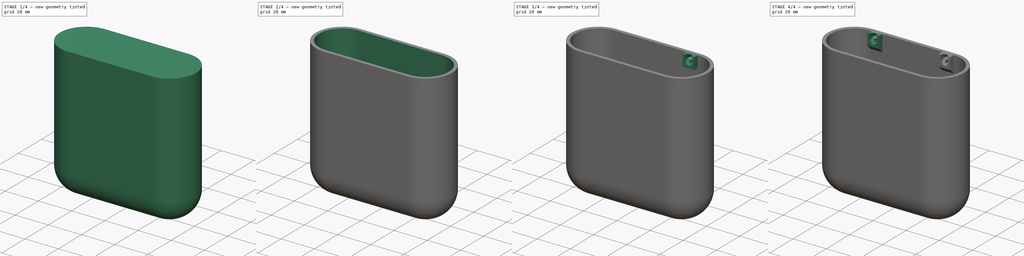
[diagram: build sequence overview — one tinted view per stage of 4, left to right]
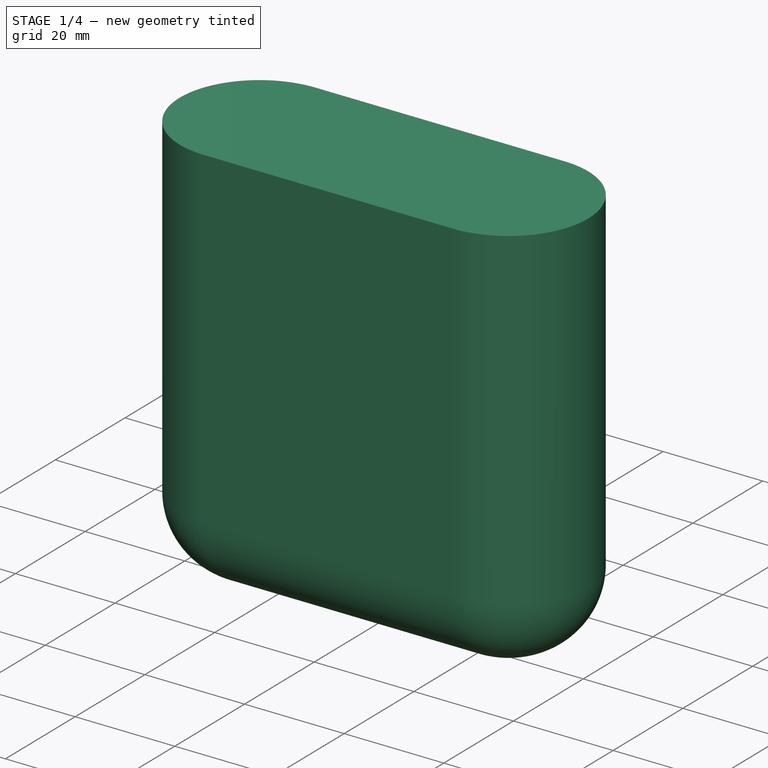
[diagram: stage 1 of 4 — iso view after this stage's code; geometry added in this stage tinted green]
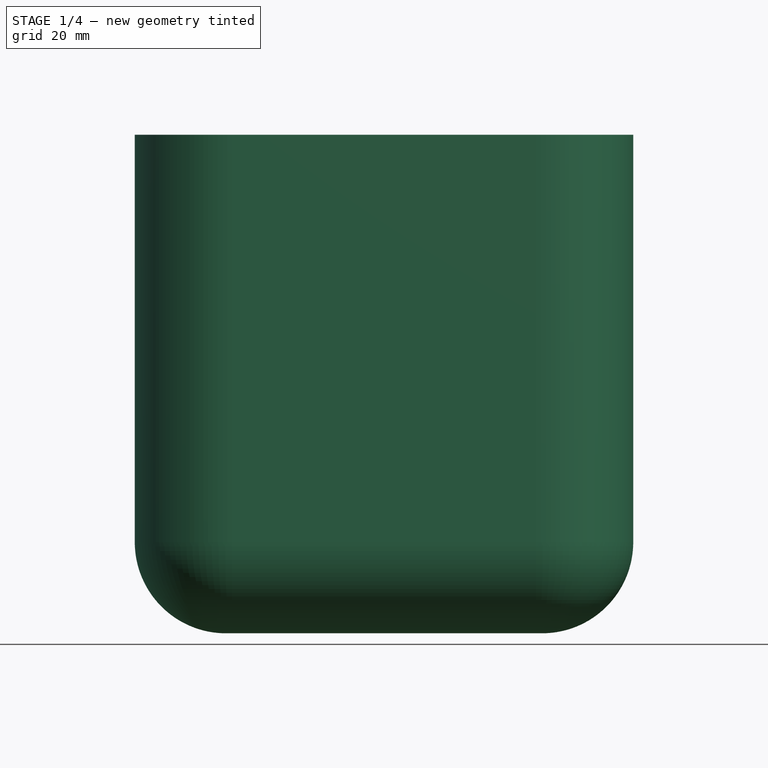
[diagram: stage 1 of 4 — front view after this stage's code; geometry added in this stage tinted green]
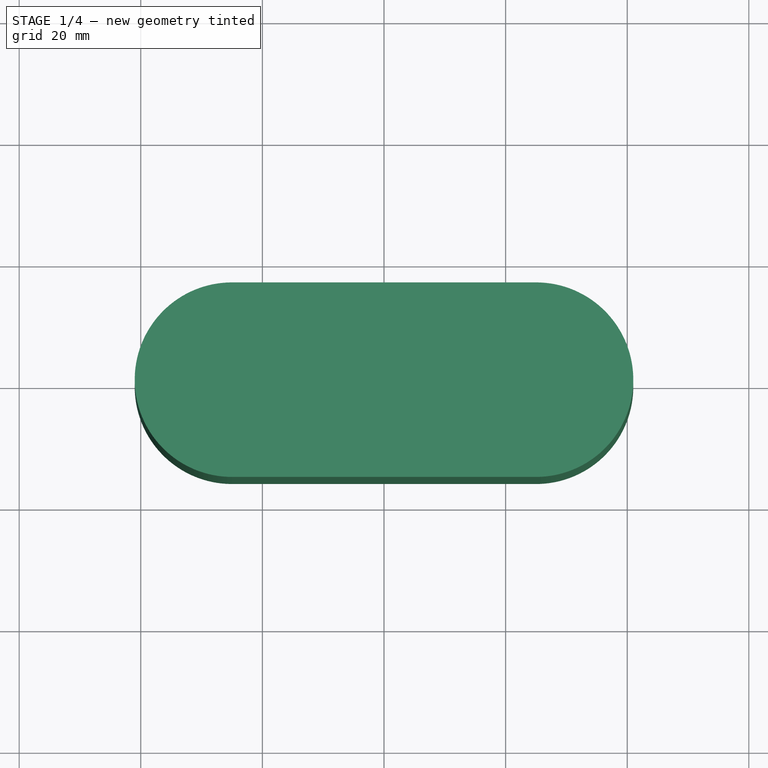
[diagram: stage 1 of 4 — top view after this stage's code; geometry added in this stage tinted green]
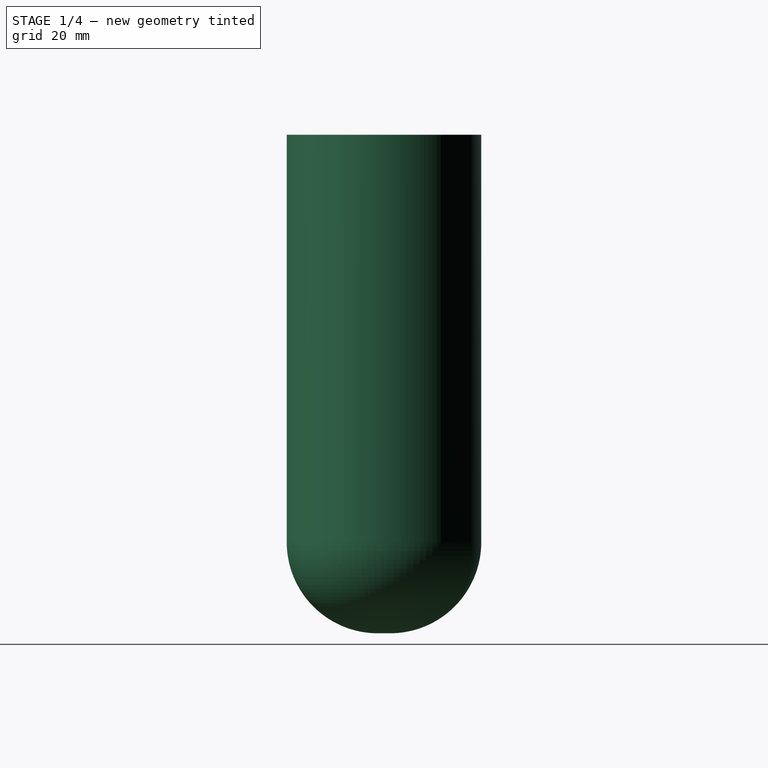
[diagram: stage 1 of 4 — right view after this stage's code; geometry added in this stage tinted green]
FCSTD DOCUMENT  (FreeCAD 0.20R29177 +426 (Git))
Label: bathroom_wall_holder
License: All rights reserved
LicenseURL: http://en.wikipedia.org/wiki/All_rights_reserved
objects: Sketcher::SketchObject×5, PartDesign::Pocket×3, PartDesign::Pad×2, PartDesign::LinearPattern×2, Spreadsheet::Sheet×1, PartDesign::Fillet×1, PartDesign::Thickness×1, PartDesign::Chamfer×1, PartDesign::Body×1
note: 24 computed .brp shape members not serialized (recipe doc carries the construction recipe); baked Part::Feature solids carry a one-line shape summary decoded from their .brp

FEATURE [Spreadsheet::Sheet] Spreadsheet  label="$params"
  cells = A1=name; B1=value; C1=name; D1=value; A2=padding; B2(padding)=2; A3=width; B3(width)=82; A4=depth; B4(depth)=32; A5=height; B5(height)=82; A6=drain_width; B6(drain_width)=2; A7=drain_count; B7(drain_count)=6; A8=drain_span; B8(drain_span)=0.6; A9=drain_span_horizontal; B9(drain_span_horizontal)=0.5; A10=nail_pad_size; B10(nail_pad_size)=7; A11=nail_head_diam; B11(nail_head_diam)=5; A12=nail_diam; B12(nail_diam)=2; A13=nail_pad_height; B13(nail_pad_height)=3; A14=nail_head_inset; B14(nail_head_inset)=0.6; A15=nail_count; B15(nail_count)=2
FEATURE [Sketcher::SketchObject] Sketch001  label="Base Body Pad Sketch"
  FullyConstrained = true
  MapMode = 5
  Support = -> [XY_Plane001]
  expr: Constraints[13] = <<$params>>.width
  expr: Constraints[14] = <<$params>>.depth
  sketch-geometry (6):
    g0: ArcOfCircle CenterX=-25 CenterY=-1.18477e-11 CenterZ=0 NormalX=0 NormalY=0 NormalZ=1 AngleXU=0 Radius=16 StartAngle=1.5708 EndAngle=4.71239
    g1: ArcOfCircle CenterX=25 CenterY=-1.18899e-11 CenterZ=0 NormalX=0 NormalY=0 NormalZ=1 AngleXU=0 Radius=16 StartAngle=4.71239 EndAngle=7.85398
    g2: LineSegment StartX=-25 StartY=-16 StartZ=0 EndX=25 EndY=-16 EndZ=0
    g3: LineSegment StartX=25 StartY=16 StartZ=0 EndX=-25 EndY=16 EndZ=0
    g4: LineSegment StartX=-25 StartY=-1.18477e-11 StartZ=0 EndX=-41 EndY=-1.18477e-11 EndZ=0
    g5: LineSegment StartX=25 StartY=-1.18899e-11 StartZ=0 EndX=41 EndY=-1.18899e-11 EndZ=0
  constraints (15):
    c: Tangent(g0,g2) = -1.5708
    c: Tangent(g2,g1) = -1.5708
    c: Tangent(g1,g3) = -1.5708
    c: Tangent(g3,g0) = -1.5708
    c: Equal(g0,g1)
    c: Horizontal(g2)
    c: Symmetric(g0,g1,g-1)
    c: Coincident(g4,g0)
    c: PointOnObject(g4,g0)
    c: Horizontal(g4)
    c: Coincident(g5,g1)
    c: PointOnObject(g5,g1)
    c: Horizontal(g5)
    c: DistanceX(g4,g5) = 82
    c: DistanceY(g0,g0) = 32
FEATURE [PartDesign::Pad] Pad001  label="Base Body Pad"
  Direction = (0,0,1)
  Length = 82
  Length2 = 10
  Profile = -> Sketch001
  ReferenceAxis = -> Sketch001 [N_Axis]
  Refine = true
  Type = 0
  expr: Length = <<$params>>.height
FEATURE [PartDesign::Fillet] Fillet  label="Base Body Bottom Round"
  Base = -> Pad001 [Face5]
  BaseFeature = -> Pad001
  Radius = 15
  SupportTransform = false
  UseAllEdges = false
  expr: Radius = (<<$params>>.depth - <<$params>>.padding) * 0.5
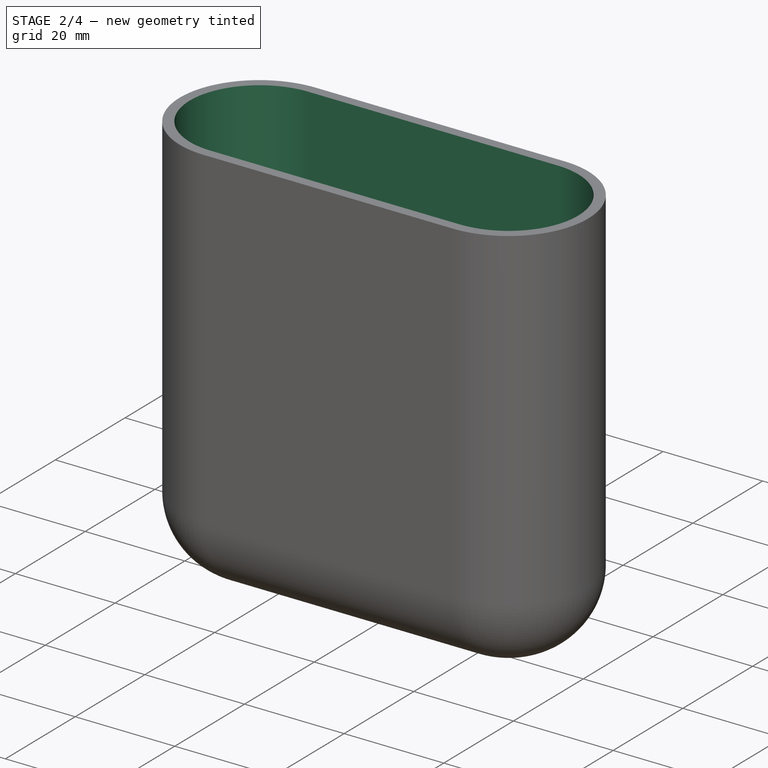
[diagram: stage 2 of 4 — iso view after this stage's code; geometry added in this stage tinted green]
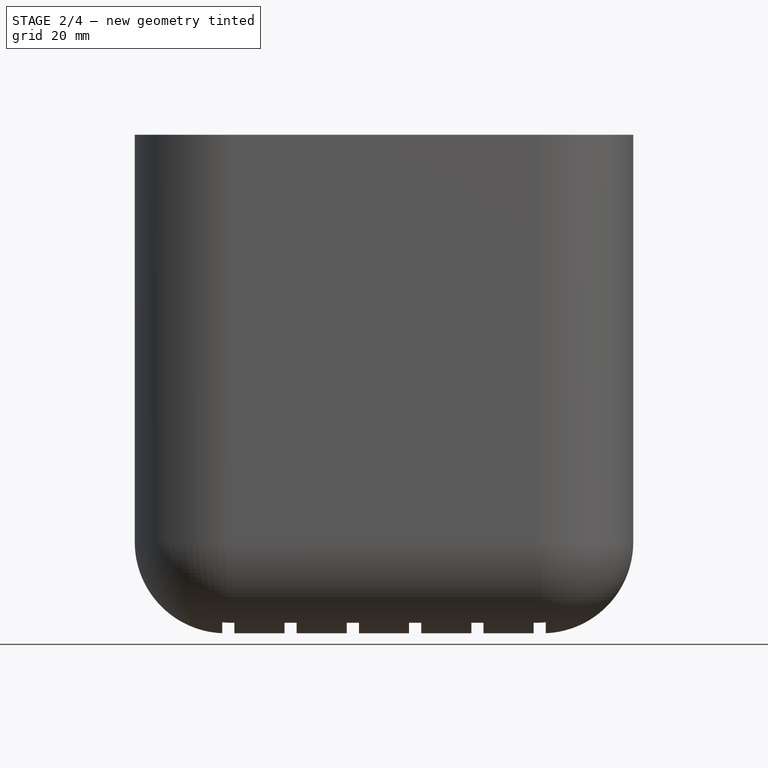
[diagram: stage 2 of 4 — front view after this stage's code; geometry added in this stage tinted green]
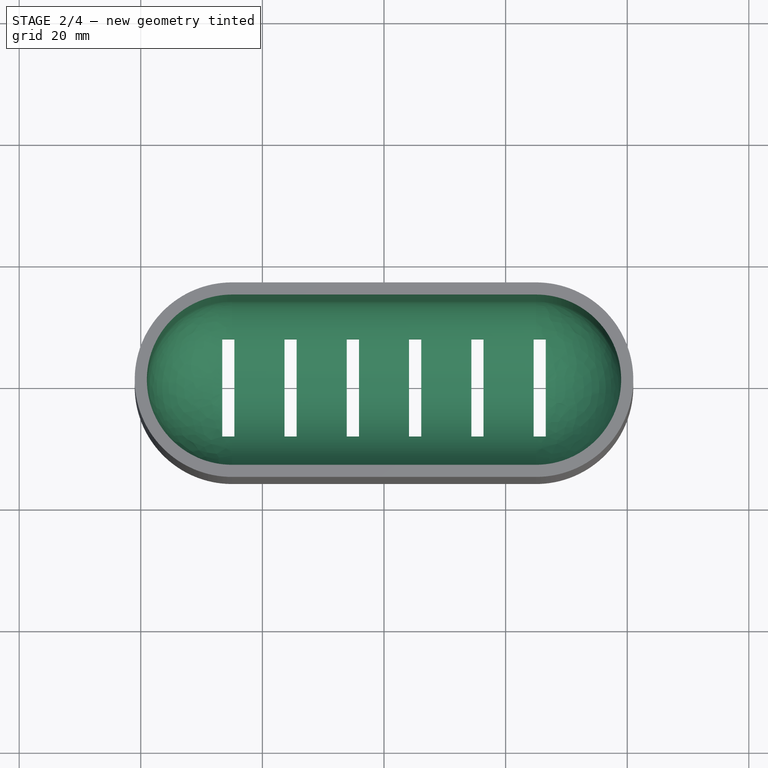
[diagram: stage 2 of 4 — top view after this stage's code; geometry added in this stage tinted green]
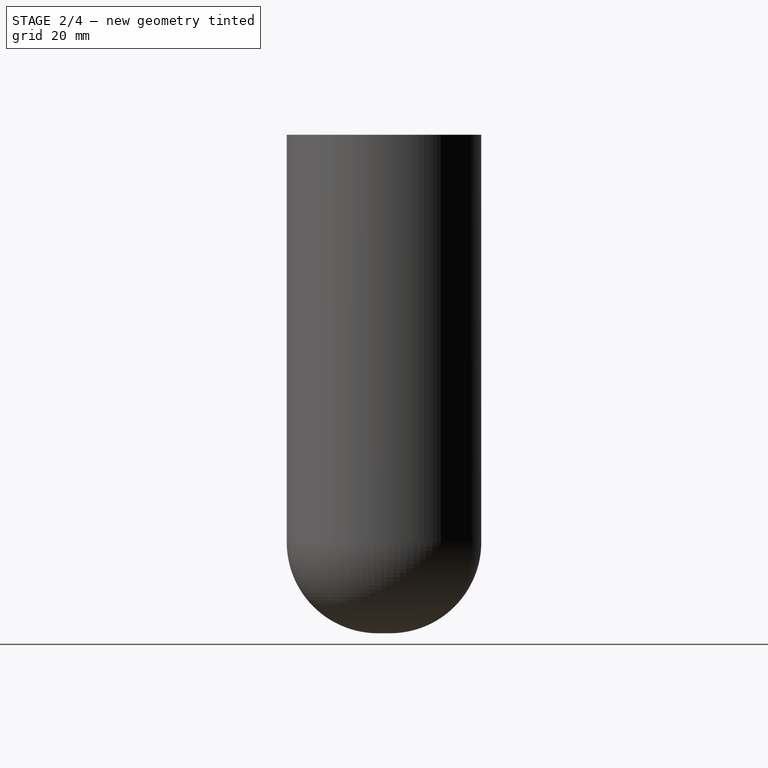
[diagram: stage 2 of 4 — right view after this stage's code; geometry added in this stage tinted green]
FEATURE [PartDesign::Thickness] Thickness001  label="Base Body Hollow"
  Base = -> Fillet [Face4]
  BaseFeature = -> Fillet
  Intersection = false
  Join = 0
  Mode = 0
  Refine = true
  Reversed = true
  SupportTransform = false
  Value = 2
  expr: Value = <<$params>>.padding
FEATURE [Sketcher::SketchObject] Sketch  label="Drain Hole Cut Sketch"
  FullyConstrained = true
  MapMode = 5
  Placement = pos=(0,0,0) rot=(1,0,0;3.14159rad)
  Support = -> [Thickness001]
  expr: Constraints[12] = <<$params>>.width * <<$params>>.drain_span / 2
  expr: Constraints[15] = <<$params>>.depth * <<$params>>.drain_span_horizontal
  sketch-geometry (6):
    g0: LineSegment StartX=24.6 StartY=8 StartZ=0 EndX=26.6 EndY=8 EndZ=0
    g1: LineSegment StartX=26.6 StartY=8 StartZ=0 EndX=26.6 EndY=-8 EndZ=0
    g2: LineSegment StartX=26.6 StartY=-8 StartZ=0 EndX=24.6 EndY=-8 EndZ=0
    g3: LineSegment StartX=24.6 StartY=-8 StartZ=0 EndX=24.6 EndY=8 EndZ=0
    g4: LineSegment StartX=0 StartY=0 StartZ=0 EndX=0 EndY=8 EndZ=0
    g5: LineSegment StartX=0 StartY=8 StartZ=0 EndX=24.6 EndY=8 EndZ=0
  constraints (16):
    c: Coincident(g0,g1)
    c: Coincident(g1,g2)
    c: Coincident(g2,g3)
    c: Coincident(g3,g0)
    c: Horizontal(g0)
    c: Horizontal(g2)
    c: Vertical(g3)
    c: Coincident(g4,g-1)
    c: PointOnObject(g4,g-2)
    c: Coincident(g5,g4)
    c: Coincident(g5,g0)
    c: Horizontal(g5)
    c: DistanceX(g5,g5) = 24.6
    c: DistanceX(g0,g0) = 2
    c: Symmetric(g0,g1,g-1)
    c: DistanceY(g1,g1) = 16
FEATURE [PartDesign::Pocket] Pocket  label="Drain Hole Cut"
  BaseFeature = -> Thickness001
  Direction = (0,0,1)
  Length = 16
  Length2 = 5
  Profile = -> Sketch
  ReferenceAxis = -> Sketch [N_Axis]
  Type = 0
  expr: Length = <<$params>>.depth / 2
FEATURE [PartDesign::LinearPattern] LinearPattern  label="Drain Hole Repeater"
  BaseFeature = -> Pocket
  Direction = -> Sketch [H_Axis]
  Length = 51.2
  Occurrences = 6
  Originals = -> [Pocket]
  Reversed = true
  expr: Length = <<$params>>.width * <<$params>>.drain_span + 2
  expr: Occurrences = <<$params>>.drain_count
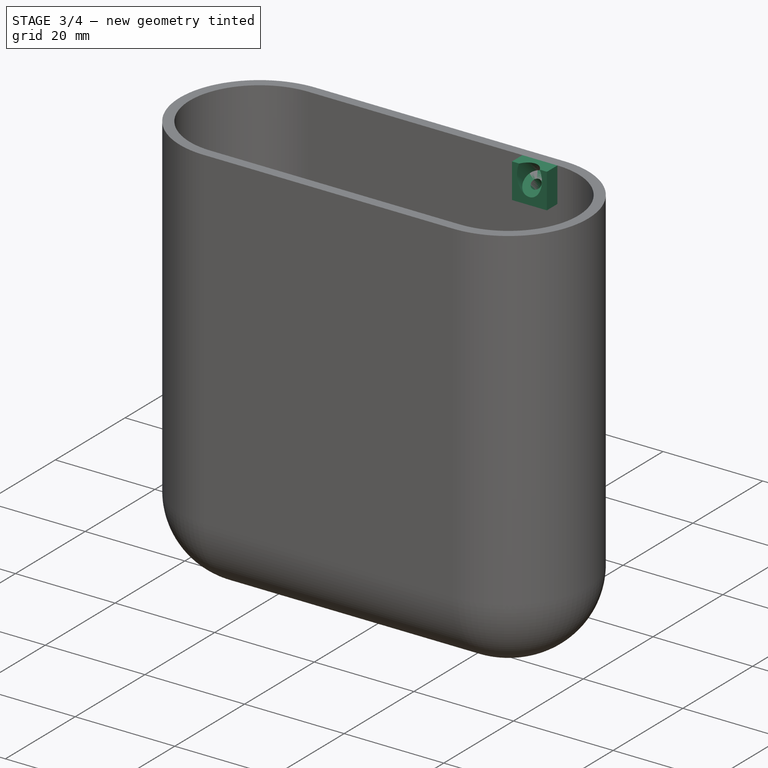
[diagram: stage 3 of 4 — iso view after this stage's code; geometry added in this stage tinted green]
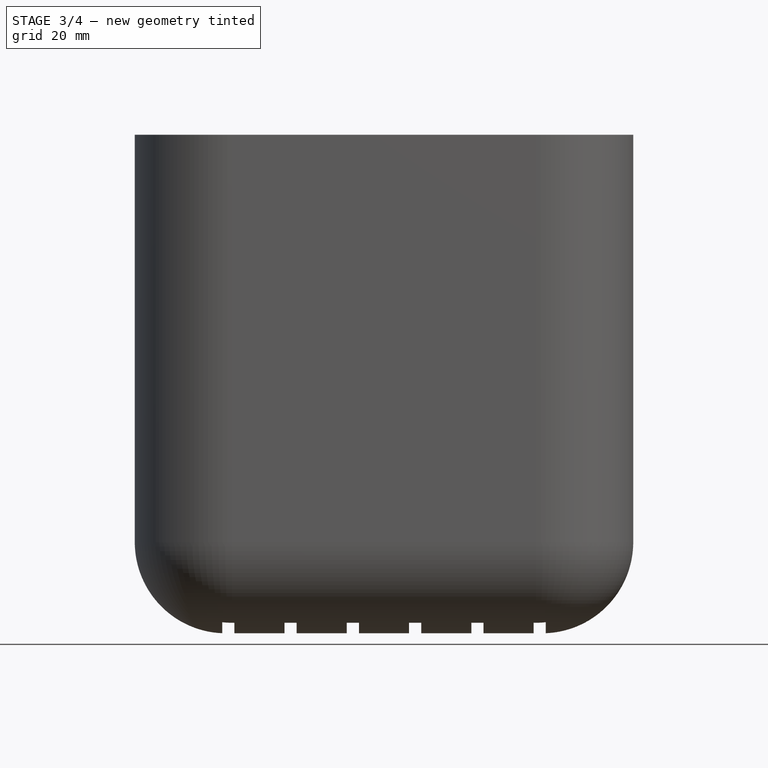
[diagram: stage 3 of 4 — front view after this stage's code; geometry added in this stage tinted green]
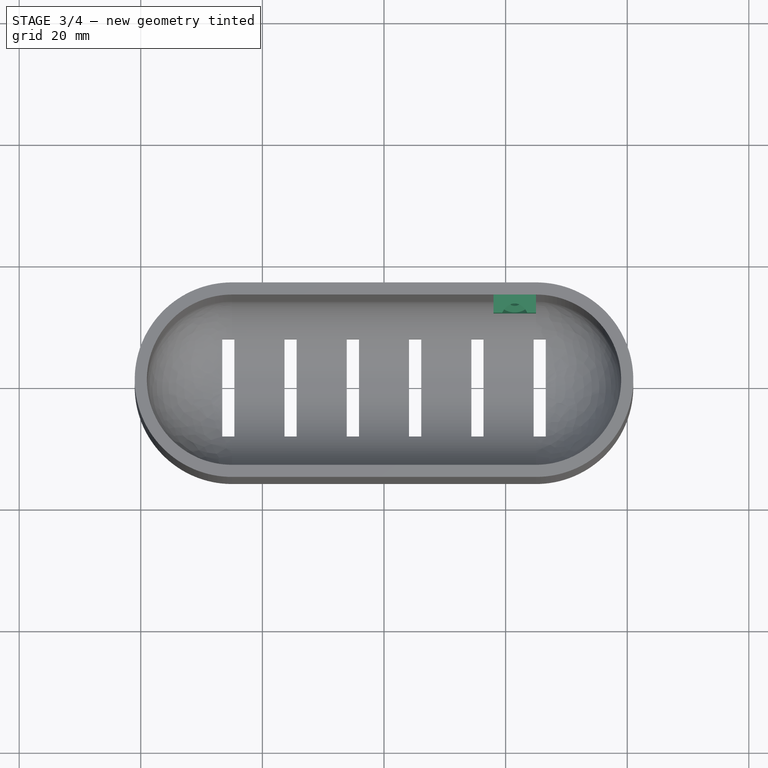
[diagram: stage 3 of 4 — top view after this stage's code; geometry added in this stage tinted green]
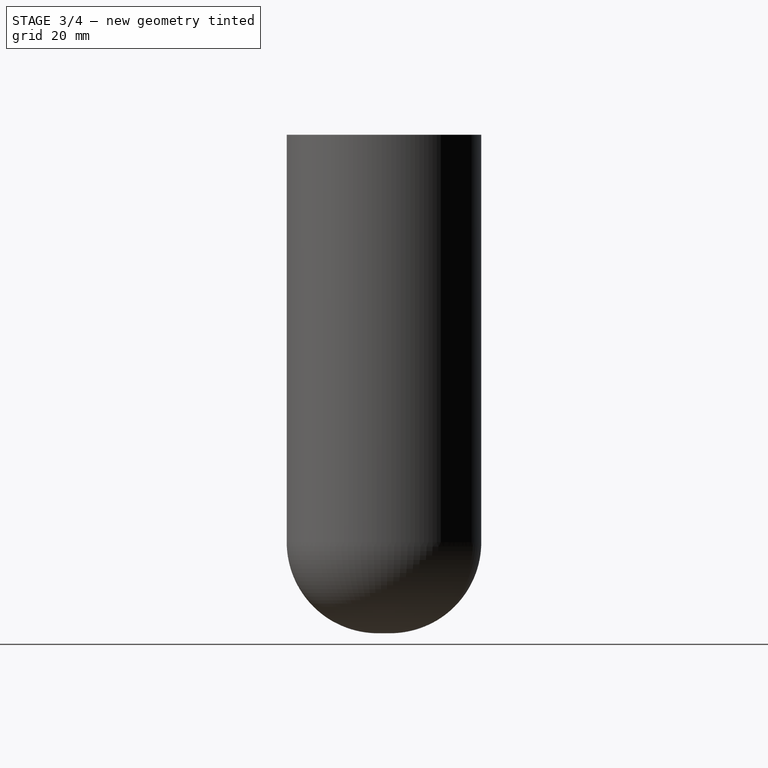
[diagram: stage 3 of 4 — right view after this stage's code; geometry added in this stage tinted green]
FEATURE [Sketcher::SketchObject] Sketch002  label="Nail Pad Sketch"
  FullyConstrained = true
  MapMode = 5
  Placement = pos=(1.14e-14,14,0) rot=(1,0,0;1.5708rad)
  Support = -> [LinearPattern]
  expr: Constraints[13] = (<<$params>>.width - <<$params>>.depth) / 2 - <<$params>>.nail_pad_size
  expr: Constraints[14] = <<$params>>.height
  expr: Constraints[8] = <<$params>>.nail_pad_size
  sketch-geometry (5):
    g0: LineSegment StartX=18 StartY=82 StartZ=0 EndX=25 EndY=82 EndZ=0
    g1: LineSegment StartX=25 StartY=82 StartZ=0 EndX=25 EndY=75 EndZ=0
    g2: LineSegment StartX=25 StartY=75 StartZ=0 EndX=18 EndY=75 EndZ=0
    g3: LineSegment StartX=18 StartY=75 StartZ=0 EndX=18 EndY=82 EndZ=0
    g4: LineSegment StartX=18 StartY=82 StartZ=0 EndX=0 EndY=82 EndZ=0
  constraints (15):
    c: Coincident(g0,g1)
    c: Coincident(g1,g2)
    c: Coincident(g2,g3)
    c: Coincident(g3,g0)
    c: Horizontal(g0)
    c: Horizontal(g2)
    c: Vertical(g1)
    c: Vertical(g3)
    c: DistanceX(g0,g0) = 7
    c: Equal(g0,g3)
    c: Coincident(g4,g0)
    c: PointOnObject(g4,g-2)
    c: Horizontal(g4)
    c: DistanceX(g4,g4) = 18
    c: DistanceY(g-1,g4) = 82
FEATURE [PartDesign::Pad] Pad  label="Nail Pad"
  BaseFeature = -> LinearPattern
  Direction = (-8e-16,-1,2e-16)
  Length = 3
  Length2 = 10
  Profile = -> Sketch002
  ReferenceAxis = -> Sketch002 [N_Axis]
  Type = 0
  expr: Length = <<$params>>.nail_pad_height
FEATURE [Sketcher::SketchObject] Sketch003  label="Nail Head Inset Cut Sketch"
  AttachmentOffset = pos=(21.5,78.5,-12.5) rot=(-0.357407,0.357407,0.862856;1.71777rad)
  FullyConstrained = true
  MapMode = 5
  Placement = pos=(21.5,12.5,78.5) rot=(0.357407,-0.357407,0.862856;1.71777rad)
  Support = -> [XZ_Plane001]
  expr: .AttachmentOffset.Base.x = (<<$params>>.width - <<$params>>.depth - <<$params>>.nail_pad_size) / 2
  expr: .AttachmentOffset.Base.y = <<$params>>.height - <<$params>>.nail_pad_size / 2
  expr: .AttachmentOffset.Base.z = <<$params>>.padding + <<$params>>.nail_pad_height / 2 - <<$params>>.depth / 2
  expr: Constraints[1] = <<$params>>.nail_head_diam
  sketch-geometry (1):
    g0: Circle CenterX=0 CenterY=0 CenterZ=0 NormalX=0 NormalY=0 NormalZ=1 AngleXU=0 Radius=2.5
  constraints (2):
    c: Coincident(g0,g-1)
    c: Diameter(g0) = 5
FEATURE [PartDesign::Pocket] Pocket001  label="Nail Head Inset Cut"
  BaseFeature = -> Pad
  Direction = (0,0.707107,-0.707107)
  Length = 7
  Length2 = 0.6
  Profile = -> Sketch003
  ReferenceAxis = -> Sketch003 [N_Axis]
  Reversed = true
  Type = 4
  expr: Length2 = <<$params>>.nail_head_inset
FEATURE [Sketcher::SketchObject] Sketch004  label="Nail Hole Cut Sketch"
  ExternalGeometry = -> [Sketch003]
  FullyConstrained = true
  MapMode = 5
  Placement = pos=(1.072e-13,-32.5757,32.5757) rot=(1,0,0;0.785398rad)
  Support = -> [Pocket001]
  expr: Constraints[1] = <<$params>>.nail_diam
  sketch-geometry (1):
    g0: Circle CenterX=21.5 CenterY=64.3467 CenterZ=0 NormalX=0 NormalY=0 NormalZ=1 AngleXU=0 Radius=1
  constraints (2):
    c: Coincident(g0,g-3)
    c: Diameter(g0) = 2
FEATURE [PartDesign::Pocket] Pocket002  label="Nail Hole Cut"
  BaseFeature = -> Pocket001
  Direction = (-2.3e-15,0.707107,-0.707107)
  Length = 5
  Length2 = 5
  Profile = -> Sketch004
  ReferenceAxis = -> Sketch004 [N_Axis]
  Type = 1
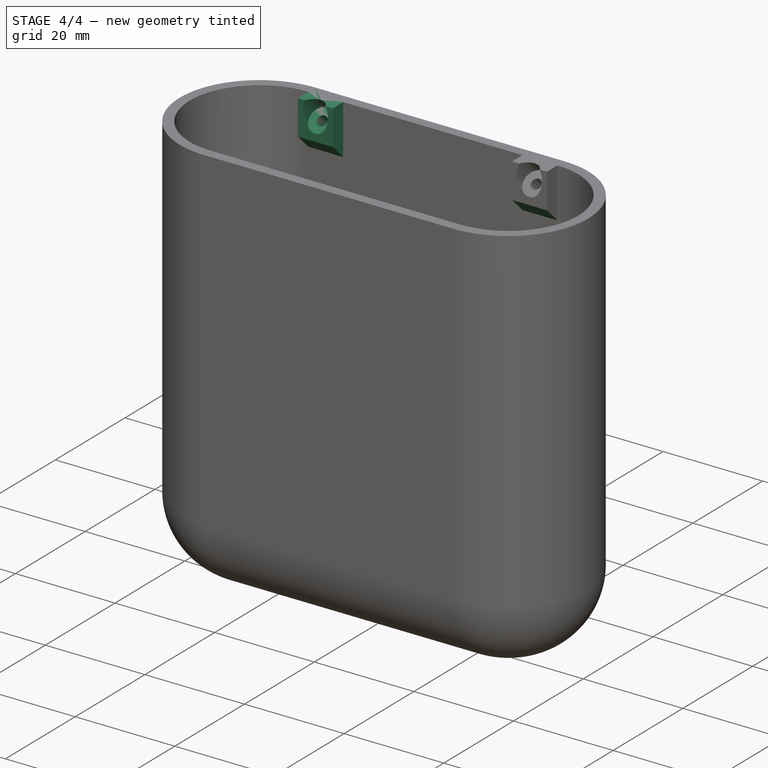
[diagram: stage 4 of 4 — iso view after this stage's code; geometry added in this stage tinted green]
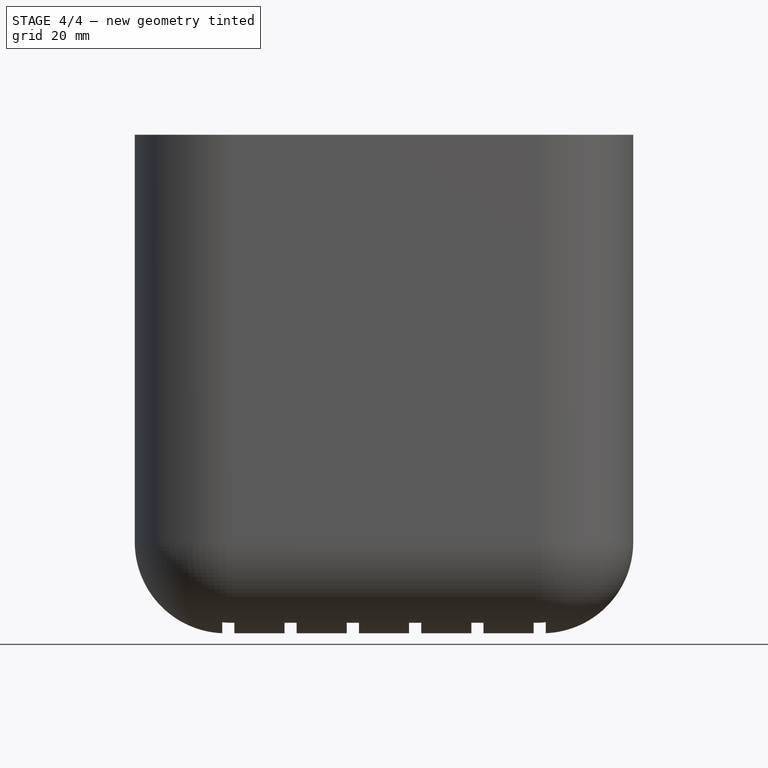
[diagram: stage 4 of 4 — front view after this stage's code; geometry added in this stage tinted green]
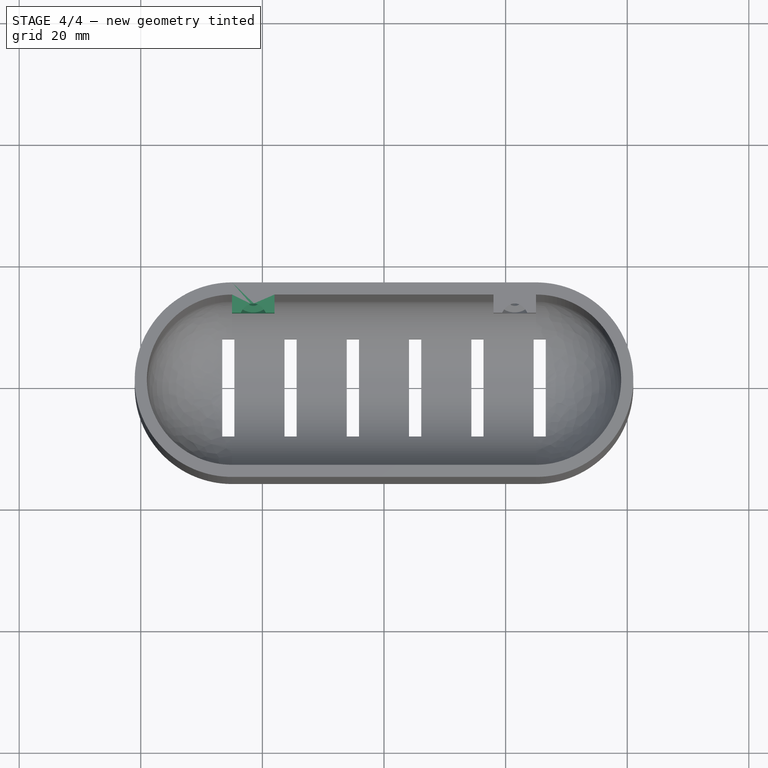
[diagram: stage 4 of 4 — top view after this stage's code; geometry added in this stage tinted green]
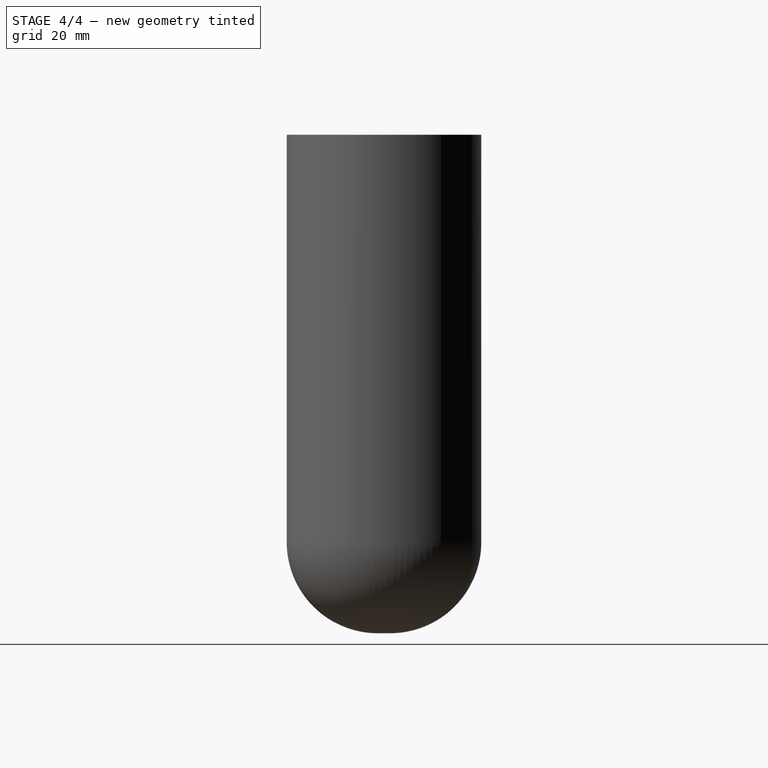
[diagram: stage 4 of 4 — right view after this stage's code; geometry added in this stage tinted green]
FEATURE [PartDesign::Chamfer] Chamfer  label="Nail Pad Chamfer"
  Angle = 45
  Base = -> Pocket002 [Edge90]
  BaseFeature = -> Pocket002
  ChamferType = 0
  FlipDirection = false
  Size = 2.97
  Size2 = 1
  SupportTransform = false
  UseAllEdges = false
  expr: Size = <<$params>>.nail_pad_height * 0.99
FEATURE [PartDesign::LinearPattern] LinearPattern001  label="Nail Pad Repeater"
  BaseFeature = -> Chamfer
  Direction = -> X_Axis001
  Length = 43
  Occurrences = 2
  Originals = -> [Pad,Pocket001,Pocket002,Chamfer]
  Refine = true
  Reversed = true
  expr: Length = <<$params>>.width - <<$params>>.depth - <<$params>>.nail_pad_size
  expr: Occurrences = <<$params>>.nail_count
FEATURE [PartDesign::Body] Body001  label="Base Body"
  Group = -> [Sketch001,Pad001,Fillet,Thickness001,Sketch,Pocket,LinearPattern,Sketch002,Pad,Sketch003,Pocket001,Sketch004,Pocket002,Chamfer,LinearPattern001]
  Origin = -> Origin001
  Tip = -> LinearPattern001
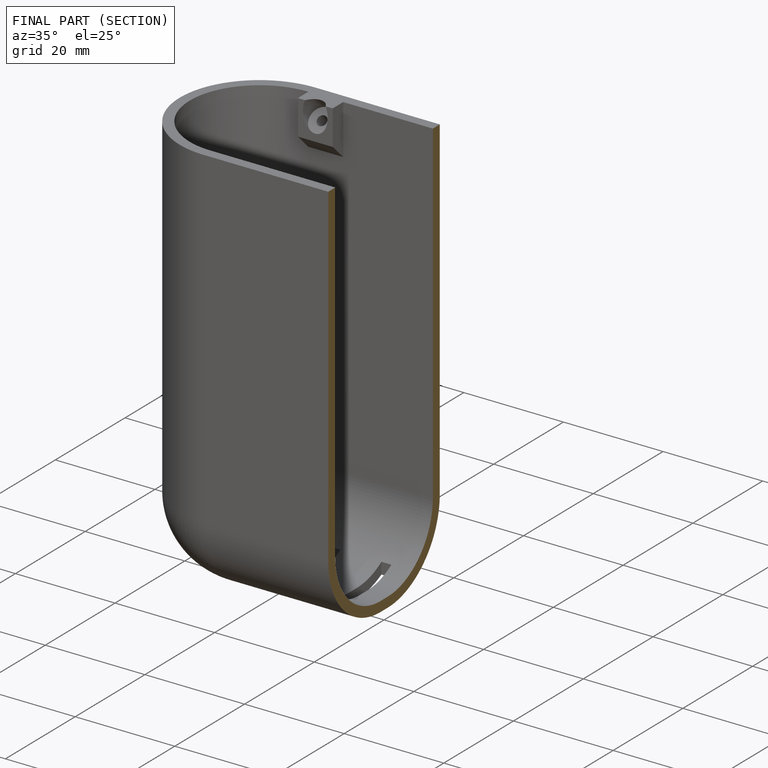
[diagram: finished part — half-section view (interior)]
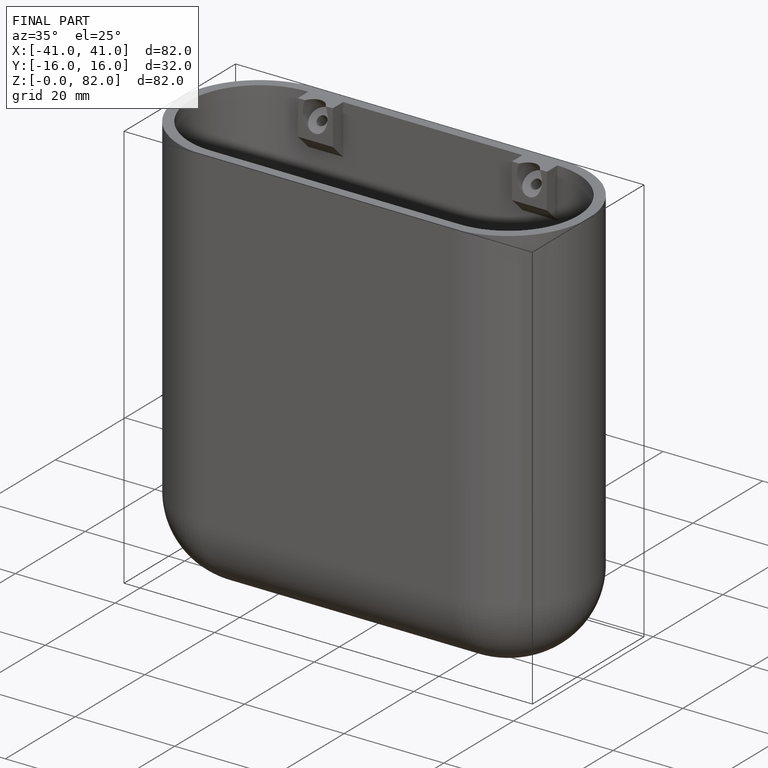
[diagram: finished part — iso view with bounding-box wireframe]
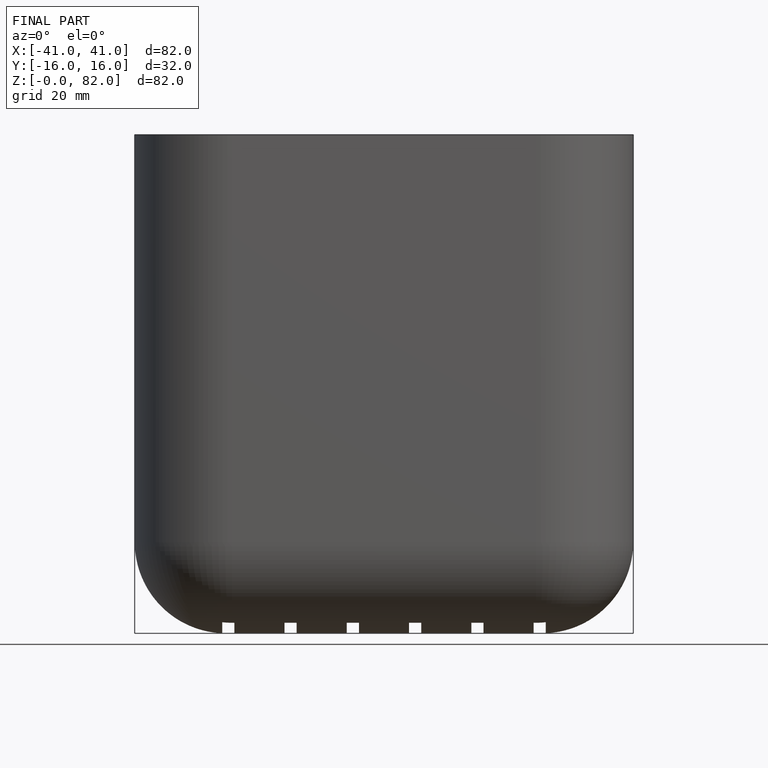
[diagram: finished part — front view with bounding-box wireframe]
